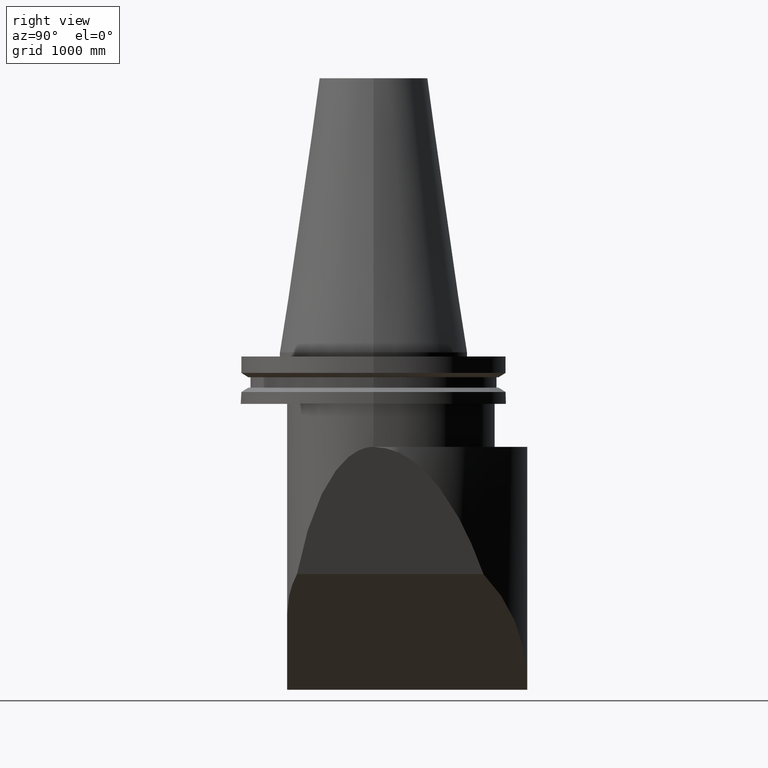
[diagram: clean part render]
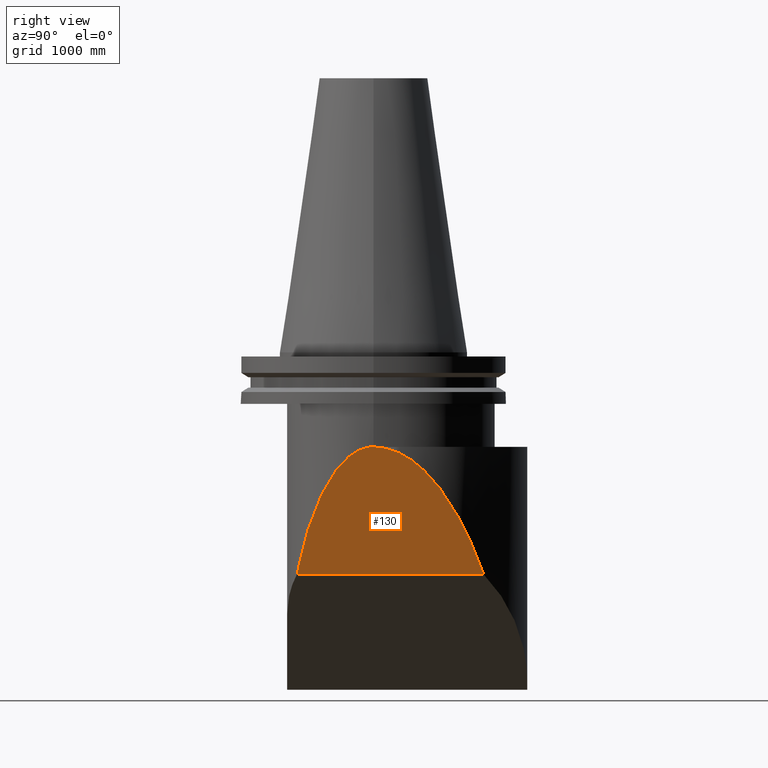
[diagram: same view with one face highlighted and labeled with its STEP entity id]
A machine part, right view. The second image highlights one B-rep face of the part: STEP entity #130.
In plain terms, the highlighted planar face has unit normal (-0.9397, 0, 0.342).
Its self-contained STEP definition (entity closure, byte-faithful):
#130=ADVANCED_FACE('Unnamed[1]',(#376),#377,.F.);
#138=EDGE_CURVE('Unnamed[1]',#387,#357,#388,.T.);
#274=EDGE_CURVE('Unnamed[1]',#545,#357,#580,.T.);
#311=EDGE_CURVE('Unnamed[1]',#545,#387,#627,.T.);
#357=VERTEX_POINT('',#673);
#376=FACE_OUTER_BOUND('',#701,.T.);
#377=PLANE('',#702);
#387=VERTEX_POINT('',#715);
#388=ELLIPSE('',#716,166.656850809296,57.0);
#545=VERTEX_POINT('',#939);
#580=LINE('',#1015,#1016);
#627=ELLIPSE('',#1094,93.5617408052189,32.0);
#673=CARTESIAN_POINT('',(27.8323961923588,40.7722971338992,-82.1676038076373));
#701=EDGE_LOOP('',(#1158,#1159,#1160));
#702=AXIS2_PLACEMENT_3D('',#1161,#1162,#1163);
#715=CARTESIAN_POINT('',(45.0000000000001,-2.14313189850787E-014,-34.9999999999998));
#716=AXIS2_PLACEMENT_3D('',#1180,#1181,#1182);
#939=CARTESIAN_POINT('',(27.8323961923587,-28.3548941664907,-82.1676038076373));
#1015=CARTESIAN_POINT('',(27.8323961923587,-1.69610138681821E-014,-82.1676038076373));
#1016=VECTOR('',#1410,1.0);
#1094=AXIS2_PLACEMENT_3D('',#1468,#1469,#1470);
#1158=ORIENTED_EDGE('',*,*,#311,.F.);
#1159=ORIENTED_EDGE('',*,*,#274,.T.);
#1160=ORIENTED_EDGE('',*,*,#138,.F.);
#1161=CARTESIAN_POINT('',(36.4161980961794,-1.91961664266304E-014,-58.5838019038185));
#1162=DIRECTION('',(-0.939692620785908,4.23719739768133E-016,0.342020143325669));
#1163=DIRECTION('',(-0.342020143325669,8.90592778073021E-017,-0.939692620785908));
#1180=CARTESIAN_POINT('',(-12.0000000000001,1.63941276372061E-013,-191.606212908914));
#1181=DIRECTION('',(-0.939692620785909,4.23719739768133E-016,0.342020143325669));
#1182=DIRECTION('',(-0.342020143325669,1.30944665184072E-016,-0.939692620785908));
#1410=DIRECTION('',(4.28626379701574E-016,1.0,-6.12323399573677E-017));
#1468=CARTESIAN_POINT('',(12.9999999999998,1.57431478663852E-013,-122.919277422548));
#1469=DIRECTION('',(-0.939692620785908,4.23719739768133E-016,0.342020143325669));
#1470=DIRECTION('',(-0.342020143325669,1.30944665184072E-016,-0.939692620785908));